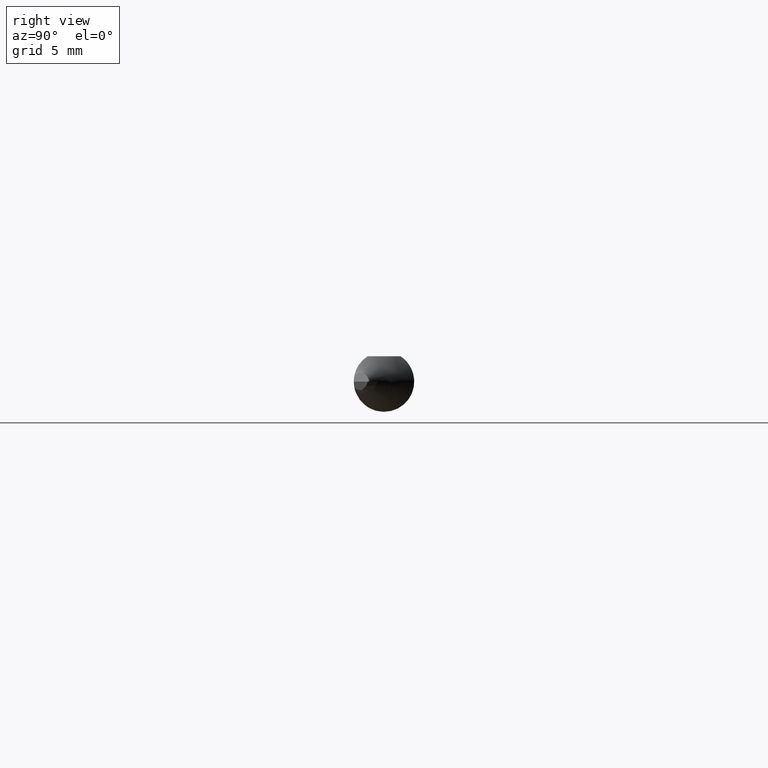
[diagram: clean part render]
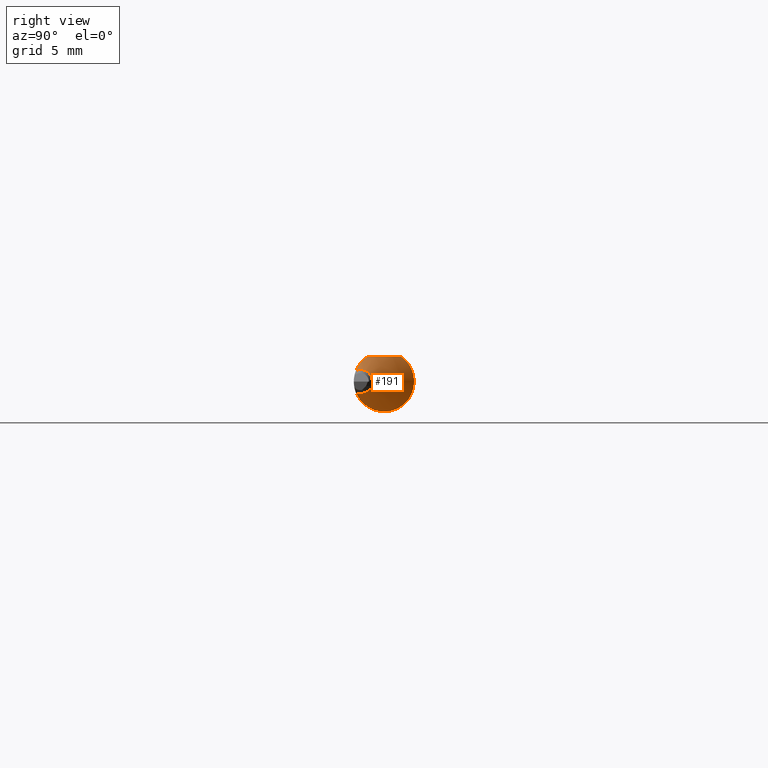
[diagram: same view with one face highlighted and labeled with its STEP entity id]
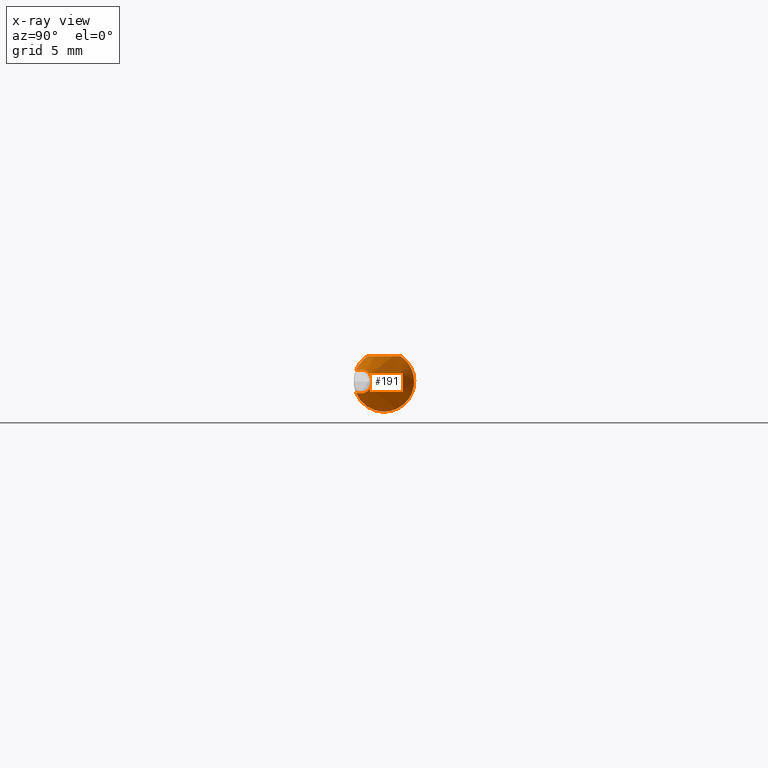
[diagram: x-ray of the same camera — body ghosted, the highlighted face saturated]
A machine part, right view. The second image highlights one B-rep face of the part: STEP entity #191.
The next image is the same camera in x-ray: the body ghosted, the highlighted face saturated — about 0% of this face is hidden behind the body in this view.
In plain terms, the highlighted conical surface has half-angle 45 deg.
Its self-contained STEP definition (entity closure, byte-faithful):
#16 = CARTESIAN_POINT ( 'NONE',  ( 1.287253451677763394, 0.03386738844375224849, 0.05234999999999997294 ) ) ;
#26 = B_SPLINE_CURVE_WITH_KNOTS ( 'NONE', 3,
 ( #314, #686, #187, #194, #118, #498, #742, #16 ),
 .UNSPECIFIED., .F., .F.,
 ( 4, 2, 2, 4 ),
 ( 0.001782749369705200187, 0.002291746602842736555, 0.002800743835980272489, 0.003818738302255333516 ),
 .UNSPECIFIED. ) ;
#27 = DIRECTION ( 'NONE',  ( -1.000000000000000000, 7.628429393907824443E-17, -0.000000000000000000 ) ) ;
#46 = CARTESIAN_POINT ( 'NONE',  ( 1.324061247341834946, -0.02612594253902928570, -0.05678370293744689629 ) ) ;
#59 = CARTESIAN_POINT ( 'NONE',  ( 1.287253451677763394, 0.03386738844375224849, 0.05234999999999997294 ) ) ;
#84 = CARTESIAN_POINT ( 'NONE',  ( 1.287253451677763394, 0.03386738844375224849, 0.05234999999999997294 ) ) ;
#108 = CARTESIAN_POINT ( 'NONE',  ( 1.275712760655050904, 0.05835260926307878765, -0.02261421930734408559 ) ) ;
#118 = CARTESIAN_POINT ( 'NONE',  ( 1.315940729725910252, -0.003415696435723368160, 0.05234999999999997294 ) ) ;
#132 = CIRCLE ( 'NONE', #786, 0.02482233047033629431 ) ;
#161 = ORIENTED_EDGE ( 'NONE', *, *, #608, .T. ) ;
#165 = CARTESIAN_POINT ( 'NONE',  ( 1.327308089143396819, -0.03008542112412410791, -0.05478176896657324657 ) ) ;
#167 = CARTESIAN_POINT ( 'NONE',  ( 1.276697613269467624, 0.05614529015636074427, -0.02761977763396476770 ) ) ;
#172 = CARTESIAN_POINT ( 'NONE',  ( 1.286114260592217340, 0.03611629276998754717, -0.05106556953486436623 ) ) ;
#173 = VERTEX_POINT ( 'NONE', #389 ) ;
#187 = CARTESIAN_POINT ( 'NONE',  ( 1.326064074130062664, -0.02100907905298101536, 0.05234999999999997294 ) ) ;
#191 = ADVANCED_FACE ( 'NONE', ( #710 ), #451, .T. ) ;
#194 = CARTESIAN_POINT ( 'NONE',  ( 1.319590123793896064, -0.009075655482202656457, 0.05235000000000000070 ) ) ;
#202 = CARTESIAN_POINT ( 'NONE',  ( 1.357101827099947089, -0.05627242694104554049, -0.02721082323776138553 ) ) ;
#207 = DIRECTION ( 'NONE',  ( -1.000000000000000000, 7.628429393907824443E-17, -0.000000000000000000 ) ) ;
#225 = CARTESIAN_POINT ( 'NONE',  ( 1.337096239893140082, -0.04069963399170441892, -0.04742870361374623700 ) ) ;
#234 = CARTESIAN_POINT ( 'NONE',  ( 1.279607297160832324, 0.04973386610369191774, 0.03908411801189477786 ) ) ;
#262 = ORIENTED_EDGE ( 'NONE', *, *, #460, .T. ) ;
#292 = CARTESIAN_POINT ( 'NONE',  ( 1.284172246949123686, 0.04010775790294555943, -0.04801607269110307746 ) ) ;
#298 = VERTEX_POINT ( 'NONE', #365 ) ;
#306 = B_SPLINE_CURVE_WITH_KNOTS ( 'NONE', 3,
 ( #584, #697, #513, #527, #341, #536 ),
 .UNSPECIFIED., .F., .F.,
 ( 4, 2, 4 ),
 ( 4.548525278132585488E-07, 0.0006130143515065053766, 0.001225573850485197442 ),
 .UNSPECIFIED. ) ;
#309 = CARTESIAN_POINT ( 'NONE',  ( 1.360322330470336682, -0.05790887318343310858, -0.02311027707806772441 ) ) ;
#314 = CARTESIAN_POINT ( 'NONE',  ( 1.330692836829395986, -0.03386738844375224849, 0.05234999999999997294 ) ) ;
#331 = CARTESIAN_POINT ( 'NONE',  ( 1.343777558969654340, -0.04681441024227128711, -0.04140474764091207210 ) ) ;
#341 = CARTESIAN_POINT ( 'NONE',  ( 1.355520687460885387, -0.05546899663110580608, 0.02922402904108691024 ) ) ;
#365 = CARTESIAN_POINT ( 'NONE',  ( 1.330692836829395986, -0.03386738844375224849, 0.05234999999999997294 ) ) ;
#377 = EDGE_CURVE ( 'NONE', #298, #173, #306, .T. ) ;
#389 = CARTESIAN_POINT ( 'NONE',  ( 1.360322330470336682, -0.05790887318343310858, 0.02311027707806772441 ) ) ;
#394 = CARTESIAN_POINT ( 'NONE',  ( 1.347145335385850240, -0.04954905416256632361, -0.03808608969188009147 ) ) ;
#410 = CARTESIAN_POINT ( 'NONE',  ( 1.317786535252882141, -0.01787687724439776527, -0.05989466631370112676 ) ) ;
#412 = CARTESIAN_POINT ( 'NONE',  ( 1.292791935424213667, 0.02301952229598921637, -0.05814226267403477949 ) ) ;
#421 = CARTESIAN_POINT ( 'NONE',  ( 1.273842464512773054, 0.06258262008723719516, 0.009499717342791841324 ) ) ;
#433 = ORIENTED_EDGE ( 'NONE', *, *, #770, .F. ) ;
#450 = CARTESIAN_POINT ( 'NONE',  ( 1.353792540604319194, -0.05426751161431837139, -0.03099509928380111967 ) ) ;
#451 = CONICAL_SURFACE ( 'NONE', #678, 0.1111999999999999655, 0.7853981633974432830 ) ;
#454 = ORIENTED_EDGE ( 'NONE', *, *, #377, .T. ) ;
#460 = EDGE_CURVE ( 'NONE', #173, #723, #132, .T. ) ;
#466 = EDGE_LOOP ( 'NONE', ( #454, #262, #161, #433 ) ) ;
#473 = CARTESIAN_POINT ( 'NONE',  ( 1.300373745871525877, 0.009259096644930046513, -0.06183418782902093402 ) ) ;
#476 = CARTESIAN_POINT ( 'NONE',  ( 1.274006419052366557, 0.06220942500752920518, -0.006880156747974974611 ) ) ;
#481 = CARTESIAN_POINT ( 'NONE',  ( 1.283010508747750134, 0.04236988208249314880, 0.04684938386239212438 ) ) ;
#484 = CARTESIAN_POINT ( 'NONE',  ( 1.274377283033575337, 0.06136254998254018350, -0.01229094716978552070 ) ) ;
#498 = CARTESIAN_POINT ( 'NONE',  ( 1.304403652722808893, 0.01312616709034402501, 0.05234999999999996600 ) ) ;
#513 = CARTESIAN_POINT ( 'NONE',  ( 1.340505920230756987, -0.04407328980518915307, 0.04455752559564368775 ) ) ;
#518 = CARTESIAN_POINT ( 'NONE',  ( 1.360322330470336682, -0.04885000000000001147, 0.000000000000000000 ) ) ;
#527 = CARTESIAN_POINT ( 'NONE',  ( 1.350452293667162129, -0.05214961350147363783, 0.03475982987739655028 ) ) ;
#536 = CARTESIAN_POINT ( 'NONE',  ( 1.360322330470336682, -0.05790887318343310858, 0.02311027707806772441 ) ) ;
#540 = CARTESIAN_POINT ( 'NONE',  ( 1.333810298333626188, -0.03735105319157269038, -0.05011061365422706665 ) ) ;
#543 = CARTESIAN_POINT ( 'NONE',  ( 1.297761274213311111, 0.01387756083872426771, -0.06097404710825342355 ) ) ;
#548 = CARTESIAN_POINT ( 'NONE',  ( 1.305905219256007666, -2.666510699494835889E-05, -0.06252357110823776598 ) ) ;
#584 = CARTESIAN_POINT ( 'NONE',  ( 1.330692836829395986, -0.03386738844375224849, 0.05234999999999997294 ) ) ;
#586 = DIRECTION ( 'NONE',  ( 0.000000000000000000, -1.000000000000000000, 0.000000000000000000 ) ) ;
#599 = CARTESIAN_POINT ( 'NONE',  ( 1.360322330470336682, -0.05790887318343310858, -0.02311027707806772441 ) ) ;
#602 = VERTEX_POINT ( 'NONE', #84 ) ;
#608 = EDGE_CURVE ( 'NONE', #723, #602, #658, .T. ) ;
#651 = CARTESIAN_POINT ( 'NONE',  ( 1.273944660940672158, -0.04885000000000000453, 0.000000000000000000 ) ) ;
#658 = B_SPLINE_CURVE_WITH_KNOTS ( 'NONE', 3,
 ( #599, #202, #450, #394, #331, #225, #540, #165, #46, #410, #726, #670, #548, #473, #543, #412, #779, #172, #292, #791, #724, #167, #108, #484, #476, #421, #666, #234, #481, #59 ),
 .UNSPECIFIED., .F., .F.,
 ( 4, 2, 2, 2, 2, 2, 2, 2, 2, 2, 2, 2, 2, 2, 4 ),
 ( 3.354477029340792193E-07, 0.0004119227835304740135, 0.0008235101193580138777, 0.001235097455185553850, 0.001646684791013093823, 0.002058272126840633362, 0.002469859462668173335, 0.002881446798495713307, 0.003293034134323253280, 0.003704621470150793253, 0.004116208805978333225, 0.004527796141805873198, 0.004939383477633413171, 0.005762558149288493116, 0.006585732820943573061 ),
 .UNSPECIFIED. ) ;
#666 = CARTESIAN_POINT ( 'NONE',  ( 1.275006673173756822, 0.05988986606016014069, 0.02035263279489296293 ) ) ;
#670 = CARTESIAN_POINT ( 'NONE',  ( 1.308827058919708630, -0.004690277908674495531, -0.06233568407882179169 ) ) ;
#678 = AXIS2_PLACEMENT_3D ( 'NONE', #651, #27, #586 ) ;
#686 = CARTESIAN_POINT ( 'NONE',  ( 1.328887346580172490, -0.02730563269667976231, 0.05234999999999997988 ) ) ;
#697 = CARTESIAN_POINT ( 'NONE',  ( 1.335595219359921204, -0.03933194670942939675, 0.04881475038286139934 ) ) ;
#710 = FACE_OUTER_BOUND ( 'NONE', #466, .T. ) ;
#723 = VERTEX_POINT ( 'NONE', #309 ) ;
#724 = CARTESIAN_POINT ( 'NONE',  ( 1.279165243974473620, 0.05072947308261328142, -0.03662876307018862743 ) ) ;
#726 = CARTESIAN_POINT ( 'NONE',  ( 1.314750412668301616, -0.01358512118808107710, -0.06101787196174927180 ) ) ;
#742 = CARTESIAN_POINT ( 'NONE',  ( 1.295943991857031241, 0.02358264054126597148, 0.05234999999999997294 ) ) ;
#764 = DIRECTION ( 'NONE',  ( 0.000000000000000000, -1.000000000000000000, 0.000000000000000000 ) ) ;
#770 = EDGE_CURVE ( 'NONE', #298, #602, #26, .T. ) ;
#779 = CARTESIAN_POINT ( 'NONE',  ( 1.290410021082478043, 0.02759665915572551836, -0.05612934525549208992 ) ) ;
#786 = AXIS2_PLACEMENT_3D ( 'NONE', #518, #207, #764 ) ;
#791 = CARTESIAN_POINT ( 'NONE',  ( 1.280676283469393884, 0.04745897084256570780, -0.04076544575057513414 ) ) ;